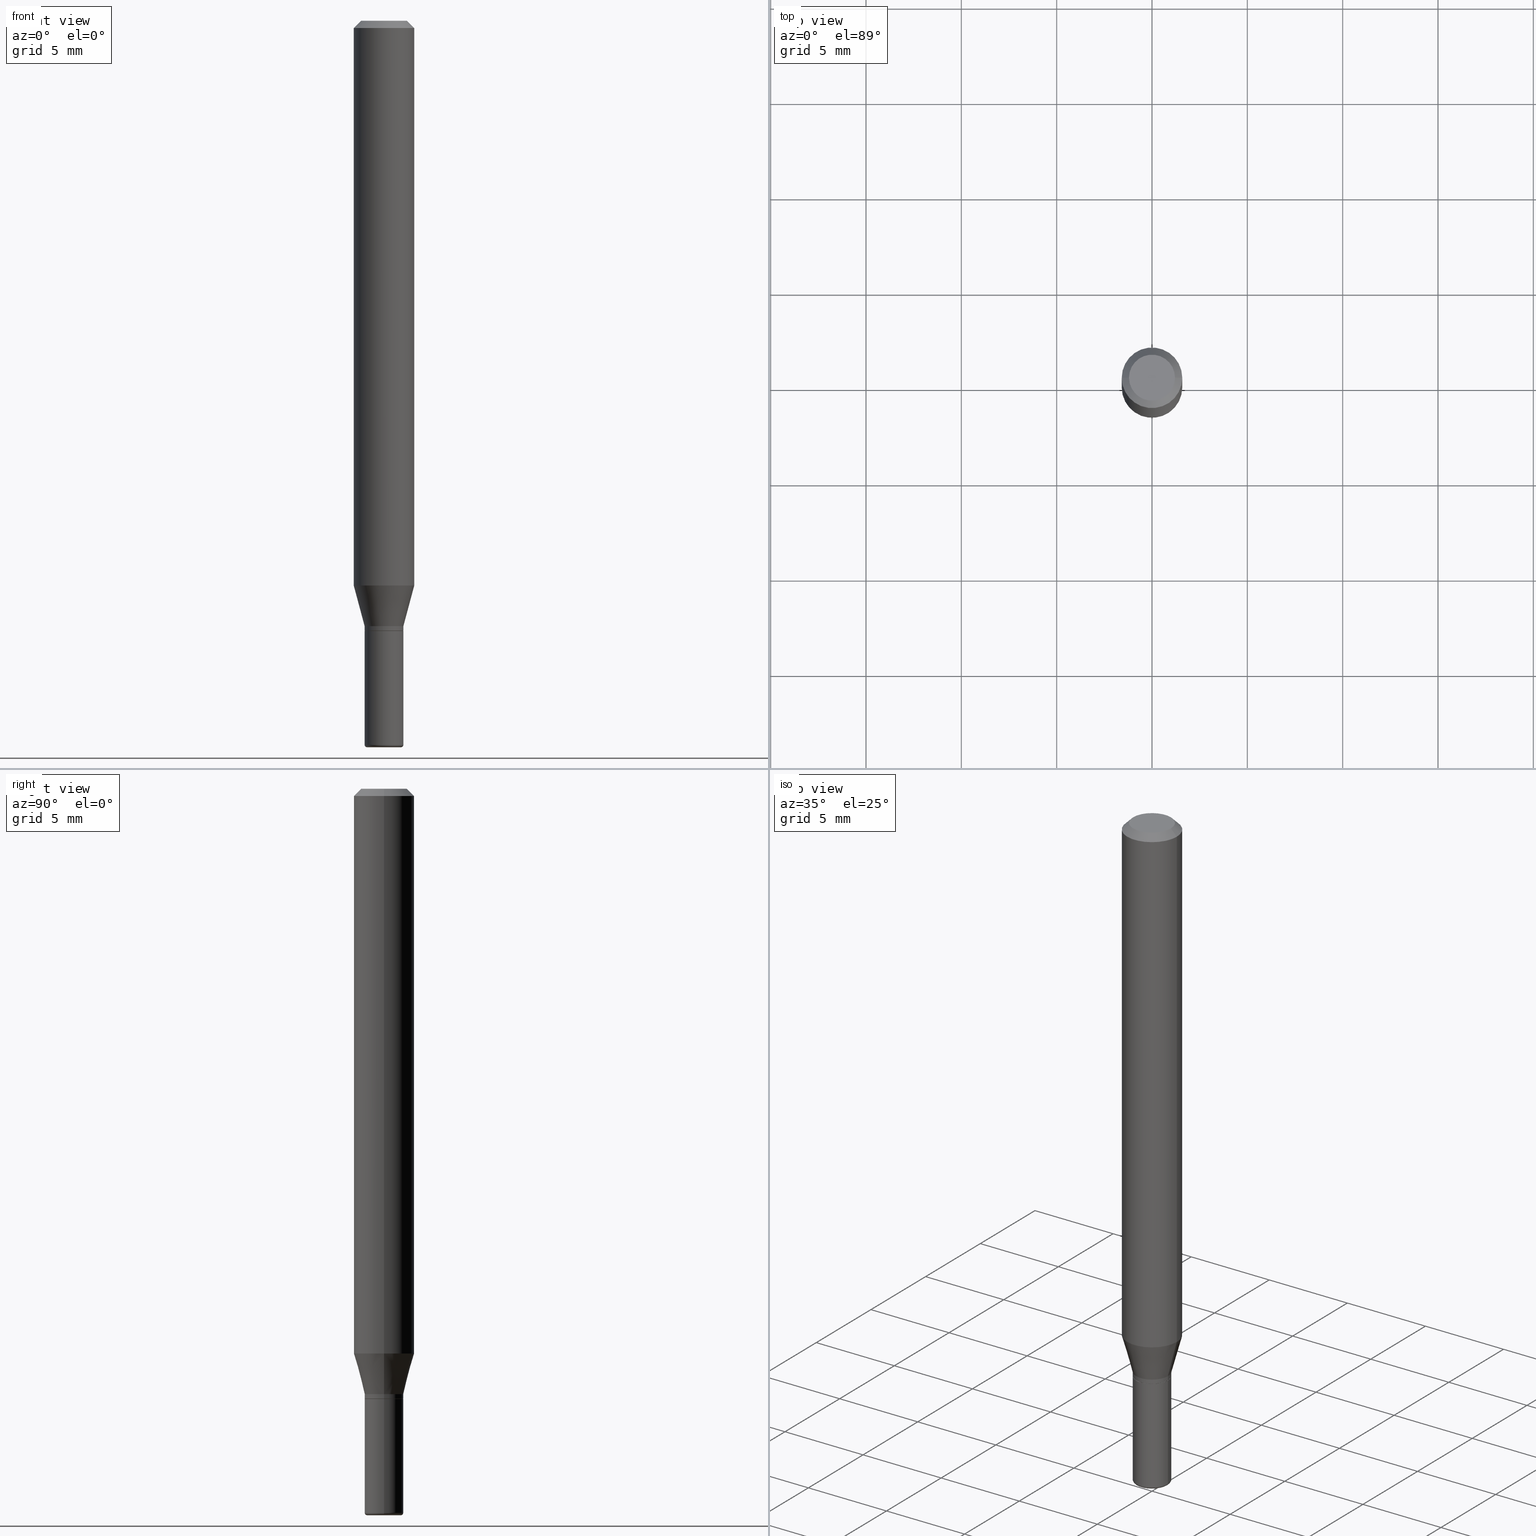
[diagram: canonical four-view strip — front | top / right | iso, engineering-drawing reading convention]
A machine part, canonical four-view strip (front | top / right | iso — engineering-drawing reading convention). The complete STEP part file that produces these views, byte-faithful:
ISO-10303-21;
HEADER;
FILE_DESCRIPTION (( 'STEP AP203' ),
    '1' );
FILE_NAME ('08560.STEP',
    '2024-02-29T19:47:42',
    ( '' ),
    ( '' ),
    'SwSTEP 2.0',
    'SolidWorks 2023',
    '' );
FILE_SCHEMA (( 'CONFIG_CONTROL_DESIGN' ));
ENDSEC;

DATA;
#1 = DIRECTION ( 'NONE',  ( -0.7071067811865479058, 2.468850131082261005E-15, -0.7071067811865471286 ) ) ;
#2 = CARTESIAN_POINT ( 'NONE',  ( -0.03949999999999994488, -4.115952879143013491E-15, -1.260000000000000231 ) ) ;
#3 = DIRECTION ( 'NONE',  ( -2.445468806185136597E-29, 3.491481338843145583E-15, 1.000000000000000000 ) ) ;
#4 = DIRECTION ( 'NONE',  ( 1.000000000000000000, -6.982962677686260400E-15, 0.000000000000000000 ) ) ;
#5 = CIRCLE ( 'NONE', #298, 0.04750000000000000749 ) ;
#6 = ORIENTED_EDGE ( 'NONE', *, *, #335, .T. ) ;
#7 = CARTESIAN_POINT ( 'NONE',  ( -0.03999999999999993838, 2.842170943040396365E-16, -1.967574036101959356E-30 ) ) ;
#8 = EDGE_CURVE ( 'NONE', #202, #307, #130, .T. ) ;
#9 = FACE_OUTER_BOUND ( 'NONE', #382, .T. ) ;
#10 = LINE ( 'NONE', #87, #364 ) ;
#11 = ADVANCED_FACE ( 'NONE', ( #80 ), #286, .T. ) ;
#12 = CIRCLE ( 'NONE', #294, 0.03500000000000000333 ) ;
#13 = CC_DESIGN_APPROVAL ( #143, ( #110 ) ) ;
#14 = DIRECTION ( 'NONE',  ( -2.445468806185136597E-29, 3.491481338843145583E-15, 1.000000000000000000 ) ) ;
#15 = FACE_OUTER_BOUND ( 'NONE', #219, .T. ) ;
#16 = ORIENTED_EDGE ( 'NONE', *, *, #204, .T. ) ;
#17 = APPROVAL_STATUS ( 'not_yet_approved' ) ;
#18 = VERTEX_POINT ( 'NONE', #200 ) ;
#19 = CIRCLE ( 'NONE', #233, 0.06250000000000000000 ) ;
#20 = DIRECTION ( 'NONE',  ( 1.000000000000000000, -6.982962677686266711E-15, 4.876176775795935793E-29 ) ) ;
#21 = EDGE_CURVE ( 'NONE', #464, #386, #245, .T. ) ;
#22 = ORIENTED_EDGE ( 'NONE', *, *, #127, .F. ) ;
#23 = DIRECTION ( 'NONE',  ( 2.445468806185136597E-29, -3.491481338843145583E-15, -1.000000000000000000 ) ) ;
#24 = PRODUCT_DEFINITION_SHAPE ( 'NONE', 'NONE',  #505 ) ;
#25 = ORIENTED_EDGE ( 'NONE', *, *, #390, .F. ) ;
#26 = DIRECTION ( 'NONE',  ( -2.445468806185136597E-29, 3.491481338843145583E-15, 1.000000000000000000 ) ) ;
#27 = ADVANCED_FACE ( 'NONE', ( #100 ), #107, .F. ) ;
#28 = ORIENTED_EDGE ( 'NONE', *, *, #394, .T. ) ;
#29 = ORIENTED_EDGE ( 'NONE', *, *, #158, .T. ) ;
#30 = CONICAL_SURFACE ( 'NONE', #500, 0.06250000000000000000, 0.7853981633974488341 ) ;
#31 = DIRECTION ( 'NONE',  ( -0.2588190451025207395, 5.211531920934546309E-15, 0.9659258262890682012 ) ) ;
#32 = DIRECTION ( 'NONE',  ( 1.000000000000000000, -6.982962677686267499E-15, 4.876176775795936353E-29 ) ) ;
#33 = APPLICATION_PROTOCOL_DEFINITION ( 'international standard', 'config_control_design', 1994, #90 ) ;
#34 = ORIENTED_EDGE ( 'NONE', *, *, #280, .T. ) ;
#35 = DIRECTION ( 'NONE',  ( -2.445468806185136597E-29, 3.491481338843145583E-15, 1.000000000000000000 ) ) ;
#36 = PERSON_AND_ORGANIZATION ( #255, #512 ) ;
#37 = DIRECTION ( 'NONE',  ( -2.445468806185136597E-29, 3.491481338843145583E-15, 1.000000000000000000 ) ) ;
#38 = CC_DESIGN_PERSON_AND_ORGANIZATION_ASSIGNMENT ( #98, #60, ( #110 ) ) ;
#39 = CARTESIAN_POINT ( 'NONE',  ( 3.056836007731420185E-29, -4.364351673553931682E-15, -1.249999999999999778 ) ) ;
#40 = AXIS2_PLACEMENT_3D ( 'NONE', #39, #289, #4 ) ;
#41 = PRODUCT_DEFINITION_FORMATION_WITH_SPECIFIED_SOURCE ( 'ANY', '', #495, .NOT_KNOWN. ) ;
#42 = DIRECTION ( 'NONE',  ( -2.445468806185136597E-29, 3.491481338843145583E-15, 1.000000000000000000 ) ) ;
#43 = CYLINDRICAL_SURFACE ( 'NONE', #162, 0.03999999999999993838 ) ;
#44 = EDGE_CURVE ( 'NONE', #307, #202, #75, .T. ) ;
#45 = CARTESIAN_POINT ( 'NONE',  ( 3.081290695793272291E-29, -4.399266486942364120E-15, -1.260000000000000231 ) ) ;
#46 = ADVANCED_FACE ( 'NONE', ( #305 ), #266, .T. ) ;
#47 = CARTESIAN_POINT ( 'NONE',  ( -0.03999999999999995226, -4.113303651968902290E-15, -1.259500000000000064 ) ) ;
#48 = CIRCLE ( 'NONE', #191, 0.03999999999999995226 ) ;
#49 = DIRECTION ( 'NONE',  ( 1.000000000000000000, -6.982962677686266711E-15, 0.000000000000000000 ) ) ;
#50 = ADVANCED_FACE ( 'NONE', ( #99 ), #413, .T. ) ;
#51 = DIRECTION ( 'NONE',  ( 1.000000000000000000, -6.982962677686256455E-15, 0.000000000000000000 ) ) ;
#52 = CARTESIAN_POINT ( 'NONE',  ( -6.680649051745406845E-45, 9.538196290434862081E-31, 2.731847993664263218E-16 ) ) ;
#53 = AXIS2_PLACEMENT_3D ( 'NONE', #343, #339, #461 ) ;
#54 = AXIS2_PLACEMENT_3D ( 'NONE', #212, #416, #210 ) ;
#55 = DIRECTION ( 'NONE',  ( -0.7071067811864267805, 7.493145998869918709E-15, 0.7071067811866682540 ) ) ;
#56 = APPLICATION_PROTOCOL_DEFINITION ( 'international standard', 'config_control_design', 1994, #253 ) ;
#57 = EDGE_LOOP ( 'NONE', ( #473, #507 ) ) ;
#58 = CC_DESIGN_PERSON_AND_ORGANIZATION_ASSIGNMENT ( #477, #389, ( #495 ) ) ;
#59 = ORIENTED_EDGE ( 'NONE', *, *, #243, .F. ) ;
#60 = PERSON_AND_ORGANIZATION_ROLE ( 'classification_officer' ) ;
#61 = CARTESIAN_POINT ( 'NONE',  ( 2.793185071074814439E-16, 0.03999999999999560157, -1.260000000000000453 ) ) ;
#62 = ORIENTED_EDGE ( 'NONE', *, *, #248, .T. ) ;
#63 = AXIS2_PLACEMENT_3D ( 'NONE', #328, #156, #365 ) ;
#64 = DATE_AND_TIME ( #136, #311 ) ;
#65 = CIRCLE ( 'NONE', #95, 0.06250000000000000000 ) ;
#66 = DIRECTION ( 'NONE',  ( 2.438088387897960049E-29, -3.491481338843145188E-15, -1.000000000000000000 ) ) ;
#67 = ORIENTED_EDGE ( 'NONE', *, *, #470, .T. ) ;
#68 = EDGE_LOOP ( 'NONE', ( #59, #144 ) ) ;
#69 = EDGE_CURVE ( 'NONE', #399, #464, #102, .T. ) ;
#70 = DIRECTION ( 'NONE',  ( 1.000000000000000000, -6.982962677686277755E-15, 0.000000000000000000 ) ) ;
#71 = EDGE_LOOP ( 'NONE', ( #198, #6, #229, #292 ) ) ;
#72 = ORIENTED_EDGE ( 'NONE', *, *, #284, .T. ) ;
#73 = CARTESIAN_POINT ( 'NONE',  ( -0.03500000000000000333, -4.971074644054467855E-15, -1.495000000000000107 ) ) ;
#74 = ORIENTED_EDGE ( 'NONE', *, *, #457, .T. ) ;
#75 = CIRCLE ( 'NONE', #53, 0.04000000000000000083 ) ;
#76 = CARTESIAN_POINT ( 'NONE',  ( 0.03949999999999994488, -4.675093512710971151E-15, -1.260000000000000231 ) ) ;
#77 = APPROVAL_ROLE ( '' ) ;
#78 = ORIENTED_EDGE ( 'NONE', *, *, #360, .F. ) ;
#79 = DIRECTION ( 'NONE',  ( 1.000000000000000000, -6.982962677686265922E-15, 4.876176775795935793E-29 ) ) ;
#80 = FACE_OUTER_BOUND ( 'NONE', #283, .T. ) ;
#81 = ADVANCED_FACE ( 'NONE', ( #228 ), #180, .T. ) ;
#82 = DIRECTION ( 'NONE',  ( 1.000000000000000000, -6.982962677686265922E-15, 4.876176775795935793E-29 ) ) ;
#83 = CARTESIAN_POINT ( 'NONE',  ( 3.668203209277704335E-29, -5.237222008264717388E-15, -1.499999999999999778 ) ) ;
#84 = CIRCLE ( 'NONE', #40, 0.03999999999999993144 ) ;
#85 = DIRECTION ( 'NONE',  ( 1.000000000000000000, -6.982962677686256455E-15, 0.000000000000000000 ) ) ;
#86 = ADVANCED_FACE ( 'NONE', ( #463 ), #30, .T. ) ;
#87 = CARTESIAN_POINT ( 'NONE',  ( 0.03999999999999993838, -2.793185071074502839E-16, 1.950470710318371585E-30 ) ) ;
#88 = AXIS2_PLACEMENT_3D ( 'NONE', #427, #66, #275 ) ;
#89 = CARTESIAN_POINT ( 'NONE',  ( -0.04750000000000000749, 3.578768372314221353E-16, 2.731847993664239060E-16 ) ) ;
#90 = APPLICATION_CONTEXT ( 'configuration controlled 3d designs of mechanical parts and assemblies' ) ;
#91 = DIRECTION ( 'NONE',  ( -2.445468806185136877E-29, 3.491481338843145188E-15, 1.000000000000000000 ) ) ;
#92 = EDGE_CURVE ( 'NONE', #345, #386, #190, .T. ) ;
#93 = CYLINDRICAL_SURFACE ( 'NONE', #407, 0.06250000000000000000 ) ;
#94 = AXIS2_PLACEMENT_3D ( 'NONE', #196, #42, #203 ) ;
#95 = AXIS2_PLACEMENT_3D ( 'NONE', #337, #373, #498 ) ;
#96 =( LENGTH_UNIT ( ) NAMED_UNIT ( * ) SI_UNIT ( $, .METRE. ) );
#97 = DESIGN_CONTEXT ( 'detailed design', #253, 'design' ) ;
#98 = PERSON_AND_ORGANIZATION ( #255, #512 ) ;
#99 = FACE_OUTER_BOUND ( 'NONE', #227, .T. ) ;
#100 = FACE_OUTER_BOUND ( 'NONE', #57, .T. ) ;
#101 = VERTEX_POINT ( 'NONE', #304 ) ;
#102 = CIRCLE ( 'NONE', #454, 0.04750000000000000749 ) ;
#103 = LOCAL_TIME ( 14, 47, 42.00000000000000000, #217 ) ;
#104 = DIRECTION ( 'NONE',  ( -2.445468806185136597E-29, 3.491481338843145583E-15, 1.000000000000000000 ) ) ;
#105 = DIRECTION ( 'NONE',  ( 1.000000000000000000, -6.982962677686260400E-15, 0.000000000000000000 ) ) ;
#106 = EDGE_LOOP ( 'NONE', ( #481, #349, #259, #301 ) ) ;
#107 = PLANE ( 'NONE',  #88 ) ;
#108 = DIRECTION ( 'NONE',  ( 0.000000000000000000, 0.000000000000000000, 1.000000000000000000 ) ) ;
#109 = DIRECTION ( 'NONE',  ( 1.000000000000000000, -6.982962677686277755E-15, 4.883557194083116825E-29 ) ) ;
#110 = SECURITY_CLASSIFICATION ( '', '', #197 ) ;
#111 = APPROVAL ( #17, 'UNSPECIFIED' ) ;
#112 = DATE_AND_TIME ( #150, #476 ) ;
#113 = FACE_OUTER_BOUND ( 'NONE', #188, .T. ) ;
#114 = ORIENTED_EDGE ( 'NONE', *, *, #44, .T. ) ;
#115 = DIRECTION ( 'NONE',  ( -2.445468806185136597E-29, 3.491481338843145583E-15, 1.000000000000000000 ) ) ;
#116 = EDGE_CURVE ( 'NONE', #345, #348, #222, .T. ) ;
#117 = DIRECTION ( 'NONE',  ( 1.000000000000000000, -6.982962677686268288E-15, 0.000000000000000000 ) ) ;
#118 = AXIS2_PLACEMENT_3D ( 'NONE', #61, #422, #433 ) ;
#119 = CC_DESIGN_APPROVAL ( #111, ( #41 ) ) ;
#120 = CARTESIAN_POINT ( 'NONE',  ( 2.851487196488745443E-29, -4.071167994173502356E-15, -1.166028856829699700 ) ) ;
#121 = CARTESIAN_POINT ( 'NONE',  ( 0.04750000000000000749, -4.035134999187568762E-16, 2.731847993664288856E-16 ) ) ;
#122 = CARTESIAN_POINT ( 'NONE',  ( 0.03999999999999995226, -2.793185071074503332E-16, 1.950470710318371935E-30 ) ) ;
#123 = CC_DESIGN_PERSON_AND_ORGANIZATION_ASSIGNMENT ( #358, #439, ( #41 ) ) ;
#124 = CIRCLE ( 'NONE', #378, 0.03949999999999994488 ) ;
#125 = DIRECTION ( 'NONE',  ( -6.982962677686266711E-15, -1.000000000000000000, 3.491481338843145583E-15 ) ) ;
#126 = DIRECTION ( 'NONE',  ( -2.445468806185136877E-29, 3.491481338843145188E-15, 1.000000000000000000 ) ) ;
#127 = EDGE_CURVE ( 'NONE', #182, #18, #267, .T. ) ;
#128 = LINE ( 'NONE', #122, #178 ) ;
#129 = ADVANCED_FACE ( 'NONE', ( #147 ), #385, .T. ) ;
#130 = CIRCLE ( 'NONE', #436, 0.04000000000000000083 ) ;
#131 = AXIS2_PLACEMENT_3D ( 'NONE', #142, #466, #511 ) ;
#132 = VECTOR ( 'NONE', #163, 39.37007874015748143 ) ;
#133 = VERTEX_POINT ( 'NONE', #431 ) ;
#134 = CARTESIAN_POINT ( 'NONE',  ( 0.000000000000000000, 0.000000000000000000, 0.000000000000000000 ) ) ;
#135 = ORIENTED_EDGE ( 'NONE', *, *, #243, .T. ) ;
#136 = CALENDAR_DATE ( 2024, 29, 2 ) ;
#137 = DIRECTION ( 'NONE',  ( -1.000000000000000000, 6.982962677686266711E-15, 0.000000000000000000 ) ) ;
#138 = ORIENTED_EDGE ( 'NONE', *, *, #470, .F. ) ;
#139 = EDGE_CURVE ( 'NONE', #133, #264, #397, .T. ) ;
#140 = EDGE_LOOP ( 'NONE', ( #25, #181 ) ) ;
#141 = DIMENSIONAL_EXPONENTS ( 1.000000000000000000, 0.000000000000000000, 0.000000000000000000, 0.000000000000000000, 0.000000000000000000, 0.000000000000000000, 0.000000000000000000 ) ;
#142 = CARTESIAN_POINT ( 'NONE',  ( 2.851487196488745443E-29, -4.071167994173502356E-15, -1.166028856829699700 ) ) ;
#143 = APPROVAL ( #514, 'UNSPECIFIED' ) ;
#144 = ORIENTED_EDGE ( 'NONE', *, *, #204, .F. ) ;
#145 = VECTOR ( 'NONE', #509, 39.37007874015748143 ) ;
#146 = AXIS2_PLACEMENT_3D ( 'NONE', #171, #14, #49 ) ;
#147 = FACE_OUTER_BOUND ( 'NONE', #363, .T. ) ;
#148 = ORIENTED_EDGE ( 'NONE', *, *, #490, .T. ) ;
#149 = CYLINDRICAL_SURFACE ( 'NONE', #287, 0.06250000000000000000 ) ;
#150 = CALENDAR_DATE ( 2024, 29, 2 ) ;
#151 = ORIENTED_EDGE ( 'NONE', *, *, #335, .F. ) ;
#152 = ADVANCED_FACE ( 'NONE', ( #316 ), #273, .F. ) ;
#153 = DIRECTION ( 'NONE',  ( -2.445468806185136597E-29, 3.491481338843145583E-15, 1.000000000000000000 ) ) ;
#154 = APPROVAL_ROLE ( '' ) ;
#155 = CIRCLE ( 'NONE', #63, 0.03500000000000000333 ) ;
#156 = DIRECTION ( 'NONE',  ( -2.445468806185136597E-29, 3.491481338843145583E-15, 1.000000000000000000 ) ) ;
#157 = CARTESIAN_POINT ( 'NONE',  ( 0.03999999999999993144, -4.643670180661380931E-15, -1.249999999999999778 ) ) ;
#158 = EDGE_CURVE ( 'NONE', #218, #348, #262, .T. ) ;
#159 = DIRECTION ( 'NONE',  ( 1.000000000000000000, -6.982962677686276966E-15, 0.000000000000000000 ) ) ;
#160 = MANIFOLD_SOLID_BREP ( 'Body-Move/Copy2[1]', #368 ) ;
#161 = CARTESIAN_POINT ( 'NONE',  ( 3.056836007731420185E-29, -4.364351673553931682E-15, -1.249999999999999778 ) ) ;
#162 = AXIS2_PLACEMENT_3D ( 'NONE', #367, #290, #32 ) ;
#163 = DIRECTION ( 'NONE',  ( -2.445468806185136877E-29, 3.491481338843145188E-15, 1.000000000000000000 ) ) ;
#164 = DIRECTION ( 'NONE',  ( 1.000000000000000000, -6.982962677686262766E-15, 0.000000000000000000 ) ) ;
#165 = EDGE_CURVE ( 'NONE', #396, #18, #518, .T. ) ;
#166 = DIRECTION ( 'NONE',  ( -2.445468806185136597E-29, 3.491481338843145583E-15, 1.000000000000000000 ) ) ;
#167 = AXIS2_PLACEMENT_3D ( 'NONE', #502, #393, #137 ) ;
#168 = VECTOR ( 'NONE', #91, 39.37007874015748143 ) ;
#169 = CARTESIAN_POINT ( 'NONE',  ( 0.06250000000000000000, -4.507603161528894025E-15, -1.166028856829699700 ) ) ;
#170 = ADVANCED_FACE ( 'NONE', ( #513 ), #149, .T. ) ;
#171 = CARTESIAN_POINT ( 'NONE',  ( 3.668203209277632395E-31, -5.237222008264614861E-17, -0.01499999999999970281 ) ) ;
#172 = EDGE_LOOP ( 'NONE', ( #353, #28, #402, #341 ) ) ;
#173 = ORIENTED_EDGE ( 'NONE', *, *, #479, .F. ) ;
#174 = MECHANICAL_CONTEXT ( 'NONE', #90, 'mechanical' ) ;
#175 = CARTESIAN_POINT ( 'NONE',  ( 0.03999999999999989675, -5.499083108677954756E-15, -1.495000000000000329 ) ) ;
#176 = ORIENTED_EDGE ( 'NONE', *, *, #8, .T. ) ;
#177 = AXIS2_PLACEMENT_3D ( 'NONE', #445, #486, #82 ) ;
#178 = VECTOR ( 'NONE', #296, 39.37007874015748143 ) ;
#179 = APPROVAL_ROLE ( '' ) ;
#180 = CYLINDRICAL_SURFACE ( 'NONE', #377, 0.03999999999999995226 ) ;
#181 = ORIENTED_EDGE ( 'NONE', *, *, #248, .F. ) ;
#182 = VERTEX_POINT ( 'NONE', #175 ) ;
#183 = CALENDAR_DATE ( 2024, 29, 2 ) ;
#184 = CC_DESIGN_PERSON_AND_ORGANIZATION_ASSIGNMENT ( #238, #383, ( #505 ) ) ;
#185 = DIRECTION ( 'NONE',  ( -1.000000000000000000, 6.982962677686266711E-15, 0.000000000000000000 ) ) ;
#186 = ADVANCED_BREP_SHAPE_REPRESENTATION ( '08560', ( #160, #338, #352 ), #448 ) ;
#187 = ADVANCED_FACE ( 'NONE', ( #359 ), #282, .F. ) ;
#188 = EDGE_LOOP ( 'NONE', ( #306, #62, #432, #388 ) ) ;
#189 = ORIENTED_EDGE ( 'NONE', *, *, #226, .F. ) ;
#190 = LINE ( 'NONE', #346, #145 ) ;
#191 = AXIS2_PLACEMENT_3D ( 'NONE', #246, #483, #117 ) ;
#192 = DIRECTION ( 'NONE',  ( 7.105427357601001859E-15, 1.000000000000000000, -3.491481338843145583E-15 ) ) ;
#193 = ADVANCED_FACE ( 'NONE', ( #244 ), #320, .F. ) ;
#194 = FACE_OUTER_BOUND ( 'NONE', #232, .T. ) ;
#195 = DATE_AND_TIME ( #425, #340 ) ;
#196 = CARTESIAN_POINT ( 'NONE',  ( 3.081290695793272291E-29, -4.399266486942364120E-15, -1.260000000000000231 ) ) ;
#197 = SECURITY_CLASSIFICATION_LEVEL ( 'unclassified' ) ;
#198 = ORIENTED_EDGE ( 'NONE', *, *, #457, .F. ) ;
#199 = AXIS2_PLACEMENT_3D ( 'NONE', #231, #104, #70 ) ;
#200 = CARTESIAN_POINT ( 'NONE',  ( -0.03999999999999989675, -4.525298449952393698E-15, -1.495000000000000329 ) ) ;
#201 = LINE ( 'NONE', #478, #406 ) ;
#202 = VERTEX_POINT ( 'NONE', #366 ) ;
#203 = DIRECTION ( 'NONE',  ( 1.000000000000000000, -6.982962677686256455E-15, 0.000000000000000000 ) ) ;
#204 = EDGE_CURVE ( 'NONE', #396, #101, #12, .T. ) ;
#205 = DIRECTION ( 'NONE',  ( 1.000000000000000000, -6.982962677686260400E-15, 0.000000000000000000 ) ) ;
#206 = ORIENTED_EDGE ( 'NONE', *, *, #226, .T. ) ;
#207 = DIRECTION ( 'NONE',  ( 1.000000000000000000, -6.982962677686266711E-15, 4.852736867747365086E-29 ) ) ;
#208 = AXIS2_PLACEMENT_3D ( 'NONE', #161, #115, #446 ) ;
#209 = CIRCLE ( 'NONE', #146, 0.06250000000000000000 ) ;
#210 = DIRECTION ( 'NONE',  ( 1.000000000000000000, -6.982962677686277755E-15, 0.000000000000000000 ) ) ;
#211 = ORIENTED_EDGE ( 'NONE', *, *, #44, .F. ) ;
#212 = CARTESIAN_POINT ( 'NONE',  ( 3.655975865246779683E-29, -5.219764601570503930E-15, -1.495000000000000329 ) ) ;
#213 = ADVANCED_FACE ( 'NONE', ( #357 ), #437, .T. ) ;
#214 = CIRCLE ( 'NONE', #208, 0.03999999999999993144 ) ;
#215 = ORIENTED_EDGE ( 'NONE', *, *, #324, .F. ) ;
#216 = LINE ( 'NONE', #488, #333 ) ;
#217 = COORDINATED_UNIVERSAL_TIME_OFFSET ( 5, 0, .BEHIND. ) ;
#218 = VERTEX_POINT ( 'NONE', #323 ) ;
#219 = EDGE_LOOP ( 'NONE', ( #138, #419, #148, #300 ) ) ;
#220 =( NAMED_UNIT ( * ) SI_UNIT ( $, .STERADIAN. ) SOLID_ANGLE_UNIT ( ) );
#221 = DIRECTION ( 'NONE',  ( -2.445468806185136597E-29, 3.491481338843145583E-15, 1.000000000000000000 ) ) ;
#222 = CIRCLE ( 'NONE', #131, 0.06250000000000000000 ) ;
#223 = CC_DESIGN_PERSON_AND_ORGANIZATION_ASSIGNMENT ( #342, #499, ( #41 ) ) ;
#224 = DATE_TIME_ROLE ( 'classification_date' ) ;
#225 = DIRECTION ( 'NONE',  ( 1.000000000000000000, -6.982962677686267499E-15, 4.876176775795936353E-29 ) ) ;
#226 = EDGE_CURVE ( 'NONE', #274, #345, #239, .T. ) ;
#227 = EDGE_LOOP ( 'NONE', ( #308, #312, #395, #487 ) ) ;
#228 = FACE_OUTER_BOUND ( 'NONE', #263, .T. ) ;
#229 = ORIENTED_EDGE ( 'NONE', *, *, #92, .T. ) ;
#230 = EDGE_LOOP ( 'NONE', ( #271, #72, #206, #151 ) ) ;
#231 = CARTESIAN_POINT ( 'NONE',  ( 3.655975865246779683E-29, -5.219764601570503930E-15, -1.495000000000000329 ) ) ;
#232 = EDGE_LOOP ( 'NONE', ( #236, #16, #508, #314 ) ) ;
#233 = AXIS2_PLACEMENT_3D ( 'NONE', #120, #279, #164 ) ;
#234 = CARTESIAN_POINT ( 'NONE',  ( -0.03999999999999993144, -4.080134579249892145E-15, -1.249999999999999778 ) ) ;
#235 = COORDINATED_UNIVERSAL_TIME_OFFSET ( 5, 0, .BEHIND. ) ;
#236 = ORIENTED_EDGE ( 'NONE', *, *, #165, .F. ) ;
#237 = CARTESIAN_POINT ( 'NONE',  ( 3.081290695793272291E-29, -4.399266486942364120E-15, -1.260000000000000231 ) ) ;
#238 = PERSON_AND_ORGANIZATION ( #255, #512 ) ;
#239 = LINE ( 'NONE', #326, #258 ) ;
#240 = AXIS2_PLACEMENT_3D ( 'NONE', #506, #221, #225 ) ;
#241 = LOCAL_TIME ( 14, 47, 42.00000000000000000, #235 ) ;
#242 = DIRECTION ( 'NONE',  ( -2.438088387897960049E-29, 3.491481338843145188E-15, 1.000000000000000000 ) ) ;
#243 = EDGE_CURVE ( 'NONE', #101, #396, #155, .T. ) ;
#244 = FACE_OUTER_BOUND ( 'NONE', #68, .T. ) ;
#245 = LINE ( 'NONE', #247, #475 ) ;
#246 = CARTESIAN_POINT ( 'NONE',  ( 3.080067961390179490E-29, -4.397520746272941828E-15, -1.259500000000000064 ) ) ;
#247 = CARTESIAN_POINT ( 'NONE',  ( 0.06250000000000000000, -4.811533449433669144E-16, -0.01499999999999970281 ) ) ;
#248 = EDGE_CURVE ( 'NONE', #319, #133, #418, .T. ) ;
#249 = CYLINDRICAL_SURFACE ( 'NONE', #370, 0.03999999999999995226 ) ;
#250 = AXIS2_PLACEMENT_3D ( 'NONE', #73, #192, #355 ) ;
#251 = CC_DESIGN_SECURITY_CLASSIFICATION ( #110, ( #41 ) ) ;
#252 = CARTESIAN_POINT ( 'NONE',  ( -0.06250000000000000000, -1.617680897278011707E-15, -0.01499999999999970281 ) ) ;
#253 = APPLICATION_CONTEXT ( 'configuration controlled 3d designs of mechanical parts and assemblies' ) ;
#254 = LENGTH_MEASURE_WITH_UNIT ( LENGTH_MEASURE( 0.02539999999999999897 ), #96 );
#255 = PERSON ( 'UNSPECIFIED', 'UNSPECIFIED', 'UNSPECIFIED', ('UNSPECIFIED'), ('UNSPECIFIED'), ('UNSPECIFIED') ) ;
#256 = ORIENTED_EDGE ( 'NONE', *, *, #116, .T. ) ;
#257 = DIRECTION ( 'NONE',  ( -2.445468806185136597E-29, 3.491481338843145583E-15, 1.000000000000000000 ) ) ;
#258 = VECTOR ( 'NONE', #482, 39.37007874015748854 ) ;
#259 = ORIENTED_EDGE ( 'NONE', *, *, #291, .T. ) ;
#260 = EDGE_LOOP ( 'NONE', ( #510, #277, #465, #78 ) ) ;
#261 = CALENDAR_DATE ( 2024, 29, 2 ) ;
#262 = LINE ( 'NONE', #234, #447 ) ;
#263 = EDGE_LOOP ( 'NONE', ( #270, #67, #211, #380 ) ) ;
#264 = VERTEX_POINT ( 'NONE', #474 ) ;
#265 = APPROVAL_STATUS ( 'not_yet_approved' ) ;
#266 = CYLINDRICAL_SURFACE ( 'NONE', #240, 0.03999999999999993838 ) ;
#267 = CIRCLE ( 'NONE', #199, 0.03999999999999989675 ) ;
#268 = APPROVAL_PERSON_ORGANIZATION ( #421, #489, #77 ) ;
#269 = CARTESIAN_POINT ( 'NONE',  ( 3.056836007731420185E-29, -4.364351673553931682E-15, -1.249999999999999778 ) ) ;
#270 = ORIENTED_EDGE ( 'NONE', *, *, #127, .T. ) ;
#271 = ORIENTED_EDGE ( 'NONE', *, *, #158, .F. ) ;
#272 = ADVANCED_FACE ( 'NONE', ( #516 ), #310, .T. ) ;
#273 = PLANE ( 'NONE',  #118 ) ;
#274 = VERTEX_POINT ( 'NONE', #157 ) ;
#275 = DIRECTION ( 'NONE',  ( -1.000000000000000000, 6.982962677686265922E-15, -4.876176775795935793E-29 ) ) ;
#276 = DATE_AND_TIME ( #183, #103 ) ;
#277 = ORIENTED_EDGE ( 'NONE', *, *, #415, .T. ) ;
#278 = CIRCLE ( 'NONE', #493, 0.004999999999999895153 ) ;
#279 = DIRECTION ( 'NONE',  ( -2.445468806185136597E-29, 3.491481338843145583E-15, 1.000000000000000000 ) ) ;
#280 = EDGE_CURVE ( 'NONE', #274, #218, #214, .T. ) ;
#281 = SHAPE_DEFINITION_REPRESENTATION ( #24, #186 ) ;
#282 = PLANE ( 'NONE',  #177 ) ;
#283 = EDGE_LOOP ( 'NONE', ( #135, #424, #22, #441 ) ) ;
#284 = EDGE_CURVE ( 'NONE', #218, #274, #84, .T. ) ;
#285 = CARTESIAN_POINT ( 'NONE',  ( 3.081290695793272291E-29, -4.399266486942364120E-15, -1.260000000000000231 ) ) ;
#286 = TOROIDAL_SURFACE ( 'NONE', #412, 0.03500000000000000333, 0.004999999999999899490 ) ;
#287 = AXIS2_PLACEMENT_3D ( 'NONE', #317, #471, #400 ) ;
#288 = APPROVAL_PERSON_ORGANIZATION ( #356, #143, #154 ) ;
#289 = DIRECTION ( 'NONE',  ( -2.445468806185136597E-29, 3.491481338843145583E-15, 1.000000000000000000 ) ) ;
#290 = DIRECTION ( 'NONE',  ( -2.445468806185136597E-29, 3.491481338843145583E-15, 1.000000000000000000 ) ) ;
#291 = EDGE_CURVE ( 'NONE', #399, #503, #201, .T. ) ;
#292 = ORIENTED_EDGE ( 'NONE', *, *, #423, .F. ) ;
#293 = CARTESIAN_POINT ( 'NONE',  ( 0.03500000000000000333, -5.464168295289523107E-15, -1.495000000000000107 ) ) ;
#294 = AXIS2_PLACEMENT_3D ( 'NONE', #83, #403, #159 ) ;
#295 = CARTESIAN_POINT ( 'NONE',  ( 3.080067961390179490E-29, -4.397520746272941828E-15, -1.259500000000000064 ) ) ;
#296 = DIRECTION ( 'NONE',  ( -2.445468806185136877E-29, 3.491481338843145188E-15, 1.000000000000000000 ) ) ;
#297 = CLOSED_SHELL ( 'NONE', ( #327, #272, #50, #453, #129, #213, #170, #86, #27, #187, #313, #46 ) ) ;
#298 = AXIS2_PLACEMENT_3D ( 'NONE', #52, #372, #207 ) ;
#299 = UNCERTAINTY_MEASURE_WITH_UNIT (LENGTH_MEASURE( 1.000000000000000082E-05 ), #462, 'distance_accuracy_value', 'NONE');
#300 = ORIENTED_EDGE ( 'NONE', *, *, #8, .F. ) ;
#301 = ORIENTED_EDGE ( 'NONE', *, *, #423, .T. ) ;
#302 = APPROVAL_DATE_TIME ( #195, #111 ) ;
#303 = CC_DESIGN_DATE_AND_TIME_ASSIGNMENT ( #318, #381, ( #505 ) ) ;
#304 = CARTESIAN_POINT ( 'NONE',  ( 0.03500000000000000333, -5.481625701983737354E-15, -1.499999999999999778 ) ) ;
#305 = FACE_OUTER_BOUND ( 'NONE', #172, .T. ) ;
#306 = ORIENTED_EDGE ( 'NONE', *, *, #430, .F. ) ;
#307 = VERTEX_POINT ( 'NONE', #408 ) ;
#308 = ORIENTED_EDGE ( 'NONE', *, *, #347, .F. ) ;
#309 = DIRECTION ( 'NONE',  ( 1.000000000000000000, -6.982962677686266711E-15, 4.852736867747365086E-29 ) ) ;
#310 = CONICAL_SURFACE ( 'NONE', #492, 0.03949999999999994488, 0.7853981633972775267 ) ;
#311 = LOCAL_TIME ( 14, 47, 42.00000000000000000, #504 ) ;
#312 = ORIENTED_EDGE ( 'NONE', *, *, #21, .T. ) ;
#313 = ADVANCED_FACE ( 'NONE', ( #113 ), #484, .T. ) ;
#314 = ORIENTED_EDGE ( 'NONE', *, *, #440, .F. ) ;
#315 = CARTESIAN_POINT ( 'NONE',  ( 3.655975865246779122E-29, -5.219764601570503141E-15, -1.495000000000000107 ) ) ;
#316 = FACE_OUTER_BOUND ( 'NONE', #410, .T. ) ;
#317 = CARTESIAN_POINT ( 'NONE',  ( 0.000000000000000000, 0.000000000000000000, 0.000000000000000000 ) ) ;
#318 = DATE_AND_TIME ( #261, #241 ) ;
#319 = VERTEX_POINT ( 'NONE', #2 ) ;
#320 = PLANE ( 'NONE',  #361 ) ;
#321 = DIRECTION ( 'NONE',  ( 1.000000000000000000, 0.000000000000000000, 0.000000000000000000 ) ) ;
#322 = AXIS2_PLACEMENT_3D ( 'NONE', #269, #26, #105 ) ;
#323 = CARTESIAN_POINT ( 'NONE',  ( -0.03999999999999993144, -3.853606681786666336E-15, -1.249999999999999778 ) ) ;
#324 = EDGE_CURVE ( 'NONE', #264, #434, #48, .T. ) ;
#325 = DIRECTION ( 'NONE',  ( -2.445468806185136597E-29, 3.491481338843145583E-15, 1.000000000000000000 ) ) ;
#326 = CARTESIAN_POINT ( 'NONE',  ( 0.03999999999999993144, -4.643670180661380931E-15, -1.249999999999999778 ) ) ;
#327 = ADVANCED_FACE ( 'NONE', ( #449 ), #43, .T. ) ;
#328 = CARTESIAN_POINT ( 'NONE',  ( 3.668203209277704335E-29, -5.237222008264717388E-15, -1.499999999999999778 ) ) ;
#329 = DIRECTION ( 'NONE',  ( -2.445468806185136877E-29, 3.491481338843145188E-15, 1.000000000000000000 ) ) ;
#330 = CARTESIAN_POINT ( 'NONE',  ( 3.081290695793272291E-29, -4.399266486942364120E-15, -1.260000000000000231 ) ) ;
#331 = ADVANCED_FACE ( 'NONE', ( #194 ), #398, .T. ) ;
#332 = CARTESIAN_POINT ( 'NONE',  ( -0.03500000000000000333, -4.962039779007574825E-15, -1.499999999999999778 ) ) ;
#333 = VECTOR ( 'NONE', #329, 39.37007874015748143 ) ;
#334 = CC_DESIGN_DATE_AND_TIME_ASSIGNMENT ( #64, #224, ( #110 ) ) ;
#335 = EDGE_CURVE ( 'NONE', #348, #345, #19, .T. ) ;
#336 = CARTESIAN_POINT ( 'NONE',  ( 0.000000000000000000, 0.000000000000000000, 0.000000000000000000 ) ) ;
#337 = CARTESIAN_POINT ( 'NONE',  ( 3.668203209277632395E-31, -5.237222008264614861E-17, -0.01499999999999970281 ) ) ;
#338 = MANIFOLD_SOLID_BREP ( 'Body-Move/Copy2[2]', #297 ) ;
#339 = DIRECTION ( 'NONE',  ( -2.445468806185136597E-29, 3.491481338843145583E-15, 1.000000000000000000 ) ) ;
#340 = LOCAL_TIME ( 14, 47, 42.00000000000000000, #401 ) ;
#341 = ORIENTED_EDGE ( 'NONE', *, *, #284, .F. ) ;
#342 = PERSON_AND_ORGANIZATION ( #255, #512 ) ;
#343 = CARTESIAN_POINT ( 'NONE',  ( 3.081290695793272291E-29, -4.399266486942364120E-15, -1.260000000000000231 ) ) ;
#344 = ORIENTED_EDGE ( 'NONE', *, *, #92, .F. ) ;
#345 = VERTEX_POINT ( 'NONE', #169 ) ;
#346 = CARTESIAN_POINT ( 'NONE',  ( 0.06250000000000000000, -4.364351673553916694E-16, 3.047610484872459871E-30 ) ) ;
#347 = EDGE_CURVE ( 'NONE', #464, #399, #5, .T. ) ;
#348 = VERTEX_POINT ( 'NONE', #452 ) ;
#349 = ORIENTED_EDGE ( 'NONE', *, *, #69, .F. ) ;
#350 = DIRECTION ( 'NONE',  ( 0.7071067811864267805, -2.468850131080992517E-15, 0.7071067811866682540 ) ) ;
#351 = VECTOR ( 'NONE', #350, 39.37007874015748143 ) ;
#352 = AXIS2_PLACEMENT_3D ( 'NONE', #480, #108, #321 ) ;
#353 = ORIENTED_EDGE ( 'NONE', *, *, #415, .F. ) ;
#354 = ORIENTED_EDGE ( 'NONE', *, *, #430, .T. ) ;
#355 = DIRECTION ( 'NONE',  ( -1.000000000000000000, 7.105427357601074434E-15, 0.000000000000000000 ) ) ;
#356 = PERSON_AND_ORGANIZATION ( #255, #512 ) ;
#357 = FACE_OUTER_BOUND ( 'NONE', #230, .T. ) ;
#358 = PERSON_AND_ORGANIZATION ( #255, #512 ) ;
#359 = FACE_OUTER_BOUND ( 'NONE', #140, .T. ) ;
#360 = EDGE_CURVE ( 'NONE', #264, #274, #10, .T. ) ;
#361 = AXIS2_PLACEMENT_3D ( 'NONE', #442, #242, #79 ) ;
#362 = APPROVAL_DATE_TIME ( #112, #143 ) ;
#363 = EDGE_LOOP ( 'NONE', ( #34, #29, #369, #189 ) ) ;
#364 = VECTOR ( 'NONE', #126, 39.37007874015748143 ) ;
#365 = DIRECTION ( 'NONE',  ( 1.000000000000000000, -6.982962677686276966E-15, 0.000000000000000000 ) ) ;
#366 = CARTESIAN_POINT ( 'NONE',  ( -0.04000000000000000083, -4.525298449952393698E-15, -1.260000000000000231 ) ) ;
#367 = CARTESIAN_POINT ( 'NONE',  ( 0.000000000000000000, 0.000000000000000000, 0.000000000000000000 ) ) ;
#368 = CLOSED_SHELL ( 'NONE', ( #11, #81, #152, #375, #331, #193 ) ) ;
#369 = ORIENTED_EDGE ( 'NONE', *, *, #116, .F. ) ;
#370 = AXIS2_PLACEMENT_3D ( 'NONE', #336, #166, #371 ) ;
#371 = DIRECTION ( 'NONE',  ( 1.000000000000000000, -6.982962677686266711E-15, 4.876176775795935793E-29 ) ) ;
#372 = DIRECTION ( 'NONE',  ( -2.445468806185136597E-29, 3.491481338843145583E-15, 1.000000000000000000 ) ) ;
#373 = DIRECTION ( 'NONE',  ( -2.445468806185136597E-29, 3.491481338843145583E-15, 1.000000000000000000 ) ) ;
#374 = PRODUCT_RELATED_PRODUCT_CATEGORY ( 'detail', '', ( #495 ) ) ;
#375 = ADVANCED_FACE ( 'NONE', ( #15 ), #249, .T. ) ;
#376 = DIRECTION ( 'NONE',  ( -2.445468806185136597E-29, 3.491481338843145583E-15, 1.000000000000000000 ) ) ;
#377 = AXIS2_PLACEMENT_3D ( 'NONE', #134, #435, #20 ) ;
#378 = AXIS2_PLACEMENT_3D ( 'NONE', #330, #376, #51 ) ;
#379 = LINE ( 'NONE', #497, #501 ) ;
#380 = ORIENTED_EDGE ( 'NONE', *, *, #490, .F. ) ;
#381 = DATE_TIME_ROLE ( 'creation_date' ) ;
#382 = EDGE_LOOP ( 'NONE', ( #256, #74, #173, #344 ) ) ;
#383 = PERSON_AND_ORGANIZATION_ROLE ( 'creator' ) ;
#384 = CARTESIAN_POINT ( 'NONE',  ( -6.680649051745406845E-45, 9.538196290434862081E-31, 2.731847993664263218E-16 ) ) ;
#385 = CONICAL_SURFACE ( 'NONE', #322, 0.03999999999999993144, 0.2617993877991494633 ) ;
#386 = VERTEX_POINT ( 'NONE', #494 ) ;
#387 = CIRCLE ( 'NONE', #54, 0.03999999999999989675 ) ;
#388 = ORIENTED_EDGE ( 'NONE', *, *, #394, .F. ) ;
#389 = PERSON_AND_ORGANIZATION_ROLE ( 'design_owner' ) ;
#390 = EDGE_CURVE ( 'NONE', #133, #319, #124, .T. ) ;
#391 = CARTESIAN_POINT ( 'NONE',  ( 3.668203209277632395E-31, -5.237222008264614861E-17, -0.01499999999999970281 ) ) ;
#392 = ORIENTED_EDGE ( 'NONE', *, *, #139, .F. ) ;
#393 = DIRECTION ( 'NONE',  ( 2.445468806185136597E-29, -3.491481338843145583E-15, -1.000000000000000000 ) ) ;
#394 = EDGE_CURVE ( 'NONE', #434, #264, #438, .T. ) ;
#395 = ORIENTED_EDGE ( 'NONE', *, *, #479, .T. ) ;
#396 = VERTEX_POINT ( 'NONE', #332 ) ;
#397 = LINE ( 'NONE', #76, #351 ) ;
#398 = TOROIDAL_SURFACE ( 'NONE', #460, 0.03500000000000000333, 0.004999999999999899490 ) ;
#399 = VERTEX_POINT ( 'NONE', #89 ) ;
#400 = DIRECTION ( 'NONE',  ( 1.000000000000000000, -6.982962677686266711E-15, 4.876176775795935793E-29 ) ) ;
#401 = COORDINATED_UNIVERSAL_TIME_OFFSET ( 5, 0, .BEHIND. ) ;
#402 = ORIENTED_EDGE ( 'NONE', *, *, #360, .T. ) ;
#403 = DIRECTION ( 'NONE',  ( -2.445468806185136597E-29, 3.491481338843145583E-15, 1.000000000000000000 ) ) ;
#404 = COORDINATED_UNIVERSAL_TIME_OFFSET ( 5, 0, .BEHIND. ) ;
#405 = DIRECTION ( 'NONE',  ( 1.000000000000000000, -6.982962677686256455E-15, 0.000000000000000000 ) ) ;
#406 = VECTOR ( 'NONE', #1, 39.37007874015748143 ) ;
#407 = AXIS2_PLACEMENT_3D ( 'NONE', #455, #257, #491 ) ;
#408 = CARTESIAN_POINT ( 'NONE',  ( 0.04000000000000000083, -4.678584994049814947E-15, -1.260000000000000231 ) ) ;
#409 = DIRECTION ( 'NONE',  ( -2.445468806185136597E-29, 3.491481338843145583E-15, 1.000000000000000000 ) ) ;
#410 = EDGE_LOOP ( 'NONE', ( #114, #176 ) ) ;
#411 = DIRECTION ( 'NONE',  ( 1.000000000000000000, -6.982962677686268288E-15, 0.000000000000000000 ) ) ;
#412 = AXIS2_PLACEMENT_3D ( 'NONE', #315, #3, #420 ) ;
#413 = CONICAL_SURFACE ( 'NONE', #167, 0.06250000000000000000, 0.7853981633974488341 ) ;
#414 = DIRECTION ( 'NONE',  ( -2.445468806185136597E-29, 3.491481338843145583E-15, 1.000000000000000000 ) ) ;
#415 = EDGE_CURVE ( 'NONE', #434, #218, #458, .T. ) ;
#416 = DIRECTION ( 'NONE',  ( -2.445468806185136597E-29, 3.491481338843145583E-15, 1.000000000000000000 ) ) ;
#417 = LINE ( 'NONE', #456, #168 ) ;
#418 = CIRCLE ( 'NONE', #517, 0.03949999999999994488 ) ;
#419 = ORIENTED_EDGE ( 'NONE', *, *, #440, .T. ) ;
#420 = DIRECTION ( 'NONE',  ( 1.000000000000000000, -6.982962677686277755E-15, 4.883557194083116825E-29 ) ) ;
#421 = PERSON_AND_ORGANIZATION ( #255, #512 ) ;
#422 = DIRECTION ( 'NONE',  ( 2.438088387897960049E-29, -3.491481338843145188E-15, -1.000000000000000000 ) ) ;
#423 = EDGE_CURVE ( 'NONE', #503, #386, #209, .T. ) ;
#424 = ORIENTED_EDGE ( 'NONE', *, *, #165, .T. ) ;
#425 = CALENDAR_DATE ( 2024, 29, 2 ) ;
#426 = AXIS2_PLACEMENT_3D ( 'NONE', #515, #325, #205 ) ;
#427 = CARTESIAN_POINT ( 'NONE',  ( 3.316907271900976589E-16, 0.04750000000000000749, -2.925296391183627249E-17 ) ) ;
#428 = AXIS2_PLACEMENT_3D ( 'NONE', #295, #414, #411 ) ;
#429 = DIRECTION ( 'NONE',  ( 0.7071067811865479058, -7.319954787623257623E-15, -0.7071067811865471286 ) ) ;
#430 = EDGE_CURVE ( 'NONE', #319, #434, #379, .T. ) ;
#431 = CARTESIAN_POINT ( 'NONE',  ( 0.03949999999999994488, -4.675093512710971151E-15, -1.260000000000000231 ) ) ;
#432 = ORIENTED_EDGE ( 'NONE', *, *, #139, .T. ) ;
#433 = DIRECTION ( 'NONE',  ( -1.000000000000000000, 6.982962677686265922E-15, -4.876176775795935793E-29 ) ) ;
#434 = VERTEX_POINT ( 'NONE', #47 ) ;
#435 = DIRECTION ( 'NONE',  ( -2.445468806185136597E-29, 3.491481338843145583E-15, 1.000000000000000000 ) ) ;
#436 = AXIS2_PLACEMENT_3D ( 'NONE', #45, #37, #444 ) ;
#437 = CONICAL_SURFACE ( 'NONE', #426, 0.03999999999999993144, 0.2617993877991494633 ) ;
#438 = CIRCLE ( 'NONE', #428, 0.03999999999999995226 ) ;
#439 = PERSON_AND_ORGANIZATION_ROLE ( 'design_supplier' ) ;
#440 = EDGE_CURVE ( 'NONE', #18, #182, #387, .T. ) ;
#441 = ORIENTED_EDGE ( 'NONE', *, *, #496, .F. ) ;
#442 = CARTESIAN_POINT ( 'NONE',  ( 3.582686580359765478E-29, -5.359686688179452536E-15, -1.499999999999999778 ) ) ;
#443 = APPROVAL_DATE_TIME ( #276, #489 ) ;
#444 = DIRECTION ( 'NONE',  ( 1.000000000000000000, -6.982962677686259611E-15, 0.000000000000000000 ) ) ;
#445 = CARTESIAN_POINT ( 'NONE',  ( 3.081290695793272291E-29, -4.399266486942364120E-15, -1.260000000000000231 ) ) ;
#446 = DIRECTION ( 'NONE',  ( 1.000000000000000000, -6.982962677686260400E-15, 0.000000000000000000 ) ) ;
#447 = VECTOR ( 'NONE', #31, 39.37007874015748854 ) ;
#448 =( GEOMETRIC_REPRESENTATION_CONTEXT ( 3 ) GLOBAL_UNCERTAINTY_ASSIGNED_CONTEXT ( ( #299 ) ) GLOBAL_UNIT_ASSIGNED_CONTEXT ( ( #462, #472, #220 ) ) REPRESENTATION_CONTEXT ( 'NONE', 'WORKASPACE' ) );
#449 = FACE_OUTER_BOUND ( 'NONE', #260, .T. ) ;
#450 = EDGE_LOOP ( 'NONE', ( #468, #354, #215, #392 ) ) ;
#451 = CARTESIAN_POINT ( 'NONE',  ( 3.655975865246779122E-29, -5.219764601570503141E-15, -1.495000000000000107 ) ) ;
#452 = CARTESIAN_POINT ( 'NONE',  ( -0.06250000000000000000, -3.627078784323440528E-15, -1.166028856829699700 ) ) ;
#453 = ADVANCED_FACE ( 'NONE', ( #9 ), #93, .T. ) ;
#454 = AXIS2_PLACEMENT_3D ( 'NONE', #384, #469, #309 ) ;
#455 = CARTESIAN_POINT ( 'NONE',  ( 0.000000000000000000, 0.000000000000000000, 0.000000000000000000 ) ) ;
#456 = CARTESIAN_POINT ( 'NONE',  ( -0.03999999999999995226, 2.842170943040397351E-16, -1.967574036101960057E-30 ) ) ;
#457 = EDGE_CURVE ( 'NONE', #348, #503, #216, .T. ) ;
#458 = LINE ( 'NONE', #7, #132 ) ;
#459 = DIRECTION ( 'NONE',  ( 1.000000000000000000, -6.982962677686284854E-15, 0.000000000000000000 ) ) ;
#460 = AXIS2_PLACEMENT_3D ( 'NONE', #451, #153, #109 ) ;
#461 = DIRECTION ( 'NONE',  ( 1.000000000000000000, -6.982962677686259611E-15, 0.000000000000000000 ) ) ;
#462 =( CONVERSION_BASED_UNIT ( 'INCH', #254 ) LENGTH_UNIT ( ) NAMED_UNIT ( #141 ) );
#463 = FACE_OUTER_BOUND ( 'NONE', #106, .T. ) ;
#464 = VERTEX_POINT ( 'NONE', #121 ) ;
#465 = ORIENTED_EDGE ( 'NONE', *, *, #280, .F. ) ;
#466 = DIRECTION ( 'NONE',  ( -2.445468806185136597E-29, 3.491481338843145583E-15, 1.000000000000000000 ) ) ;
#467 = CC_DESIGN_APPROVAL ( #489, ( #505 ) ) ;
#468 = ORIENTED_EDGE ( 'NONE', *, *, #390, .T. ) ;
#469 = DIRECTION ( 'NONE',  ( -2.445468806185136597E-29, 3.491481338843145583E-15, 1.000000000000000000 ) ) ;
#470 = EDGE_CURVE ( 'NONE', #18, #202, #417, .T. ) ;
#471 = DIRECTION ( 'NONE',  ( -2.445468806185136597E-29, 3.491481338843145583E-15, 1.000000000000000000 ) ) ;
#472 =( NAMED_UNIT ( * ) PLANE_ANGLE_UNIT ( ) SI_UNIT ( $, .RADIAN. ) );
#473 = ORIENTED_EDGE ( 'NONE', *, *, #69, .T. ) ;
#474 = CARTESIAN_POINT ( 'NONE',  ( 0.03999999999999995226, -4.676839253380392654E-15, -1.259500000000000064 ) ) ;
#475 = VECTOR ( 'NONE', #429, 39.37007874015748143 ) ;
#476 = LOCAL_TIME ( 14, 47, 42.00000000000000000, #404 ) ;
#477 = PERSON_AND_ORGANIZATION ( #255, #512 ) ;
#478 = CARTESIAN_POINT ( 'NONE',  ( -0.06250000000000000000, 3.840629472727455270E-16, -0.01499999999999970281 ) ) ;
#479 = EDGE_CURVE ( 'NONE', #386, #503, #65, .T. ) ;
#480 = CARTESIAN_POINT ( 'NONE',  ( 0.000000000000000000, 0.000000000000000000, 0.000000000000000000 ) ) ;
#481 = ORIENTED_EDGE ( 'NONE', *, *, #21, .F. ) ;
#482 = DIRECTION ( 'NONE',  ( 0.2588190451025207395, 1.565188264969626109E-15, 0.9659258262890682012 ) ) ;
#483 = DIRECTION ( 'NONE',  ( -2.445468806185136597E-29, 3.491481338843145583E-15, 1.000000000000000000 ) ) ;
#484 = CONICAL_SURFACE ( 'NONE', #94, 0.03949999999999994488, 0.7853981633972775267 ) ;
#485 = APPROVAL_PERSON_ORGANIZATION ( #36, #111, #179 ) ;
#486 = DIRECTION ( 'NONE',  ( -2.438088387897960049E-29, 3.491481338843145188E-15, 1.000000000000000000 ) ) ;
#487 = ORIENTED_EDGE ( 'NONE', *, *, #291, .F. ) ;
#488 = CARTESIAN_POINT ( 'NONE',  ( -0.06250000000000000000, 4.440892098500626162E-16, -3.074334431409316114E-30 ) ) ;
#489 = APPROVAL ( #265, 'UNSPECIFIED' ) ;
#490 = EDGE_CURVE ( 'NONE', #182, #307, #128, .T. ) ;
#491 = DIRECTION ( 'NONE',  ( 1.000000000000000000, -6.982962677686266711E-15, 4.876176775795935793E-29 ) ) ;
#492 = AXIS2_PLACEMENT_3D ( 'NONE', #285, #409, #85 ) ;
#493 = AXIS2_PLACEMENT_3D ( 'NONE', #293, #125, #459 ) ;
#494 = CARTESIAN_POINT ( 'NONE',  ( 0.06250000000000000000, -4.888073874380378612E-16, -0.01499999999999970281 ) ) ;
#495 = PRODUCT ( '08560', '08560', '', ( #174 ) ) ;
#496 = EDGE_CURVE ( 'NONE', #101, #182, #278, .T. ) ;
#497 = CARTESIAN_POINT ( 'NONE',  ( -0.03949999999999994488, -4.118602106317125481E-15, -1.260000000000000231 ) ) ;
#498 = DIRECTION ( 'NONE',  ( 1.000000000000000000, -6.982962677686266711E-15, 0.000000000000000000 ) ) ;
#499 = PERSON_AND_ORGANIZATION_ROLE ( 'creator' ) ;
#500 = AXIS2_PLACEMENT_3D ( 'NONE', #391, #23, #185 ) ;
#501 = VECTOR ( 'NONE', #55, 39.37007874015748143 ) ;
#502 = CARTESIAN_POINT ( 'NONE',  ( 3.668203209277632395E-31, -5.237222008264614861E-17, -0.01499999999999970281 ) ) ;
#503 = VERTEX_POINT ( 'NONE', #252 ) ;
#504 = COORDINATED_UNIVERSAL_TIME_OFFSET ( 5, 0, .BEHIND. ) ;
#505 = PRODUCT_DEFINITION ( 'UNKNOWN', '', #41, #97 ) ;
#506 = CARTESIAN_POINT ( 'NONE',  ( 0.000000000000000000, 0.000000000000000000, 0.000000000000000000 ) ) ;
#507 = ORIENTED_EDGE ( 'NONE', *, *, #347, .T. ) ;
#508 = ORIENTED_EDGE ( 'NONE', *, *, #496, .T. ) ;
#509 = DIRECTION ( 'NONE',  ( -2.445468806185136877E-29, 3.491481338843145188E-15, 1.000000000000000000 ) ) ;
#510 = ORIENTED_EDGE ( 'NONE', *, *, #324, .T. ) ;
#511 = DIRECTION ( 'NONE',  ( 1.000000000000000000, -6.982962677686262766E-15, 0.000000000000000000 ) ) ;
#512 = ORGANIZATION ( 'UNSPECIFIED', 'UNSPECIFIED', '' ) ;
#513 = FACE_OUTER_BOUND ( 'NONE', #71, .T. ) ;
#514 = APPROVAL_STATUS ( 'not_yet_approved' ) ;
#515 = CARTESIAN_POINT ( 'NONE',  ( 3.056836007731420185E-29, -4.364351673553931682E-15, -1.249999999999999778 ) ) ;
#516 = FACE_OUTER_BOUND ( 'NONE', #450, .T. ) ;
#517 = AXIS2_PLACEMENT_3D ( 'NONE', #237, #35, #405 ) ;
#518 = CIRCLE ( 'NONE', #250, 0.004999999999999895153 ) ;
ENDSEC;
END-ISO-10303-21;
